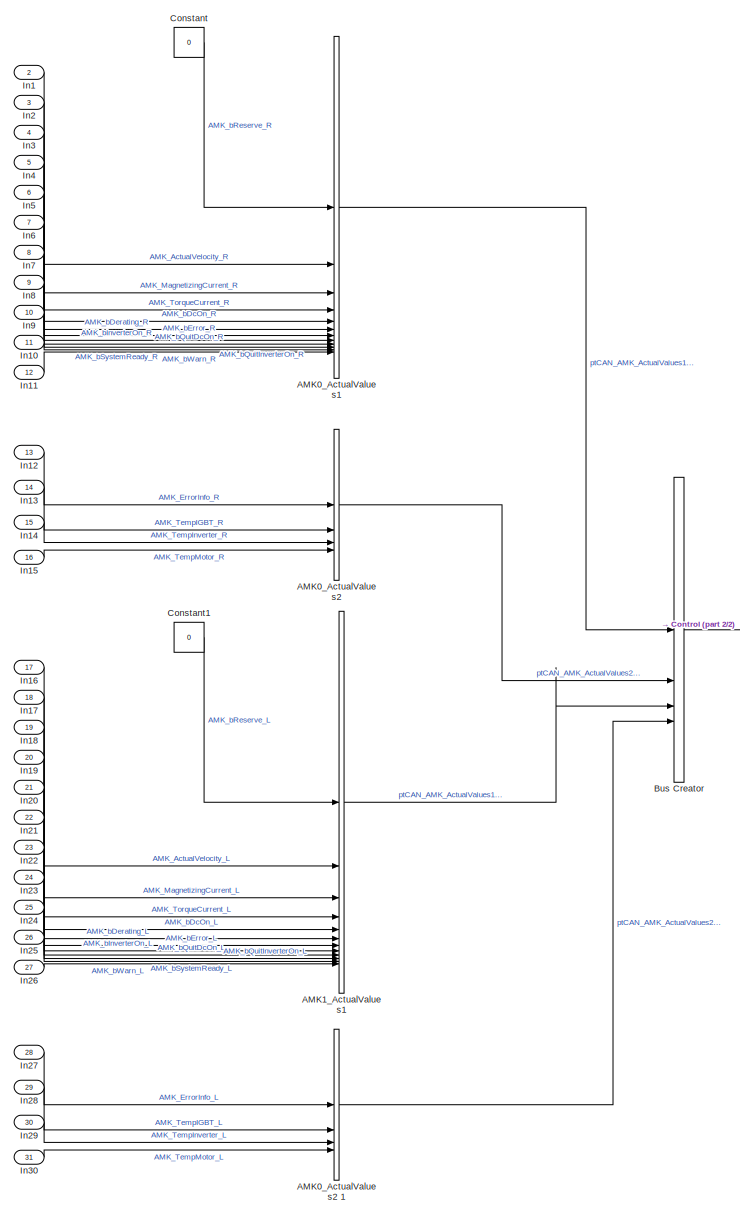
[diagram: root canvas - part 1/2, left side, full height]
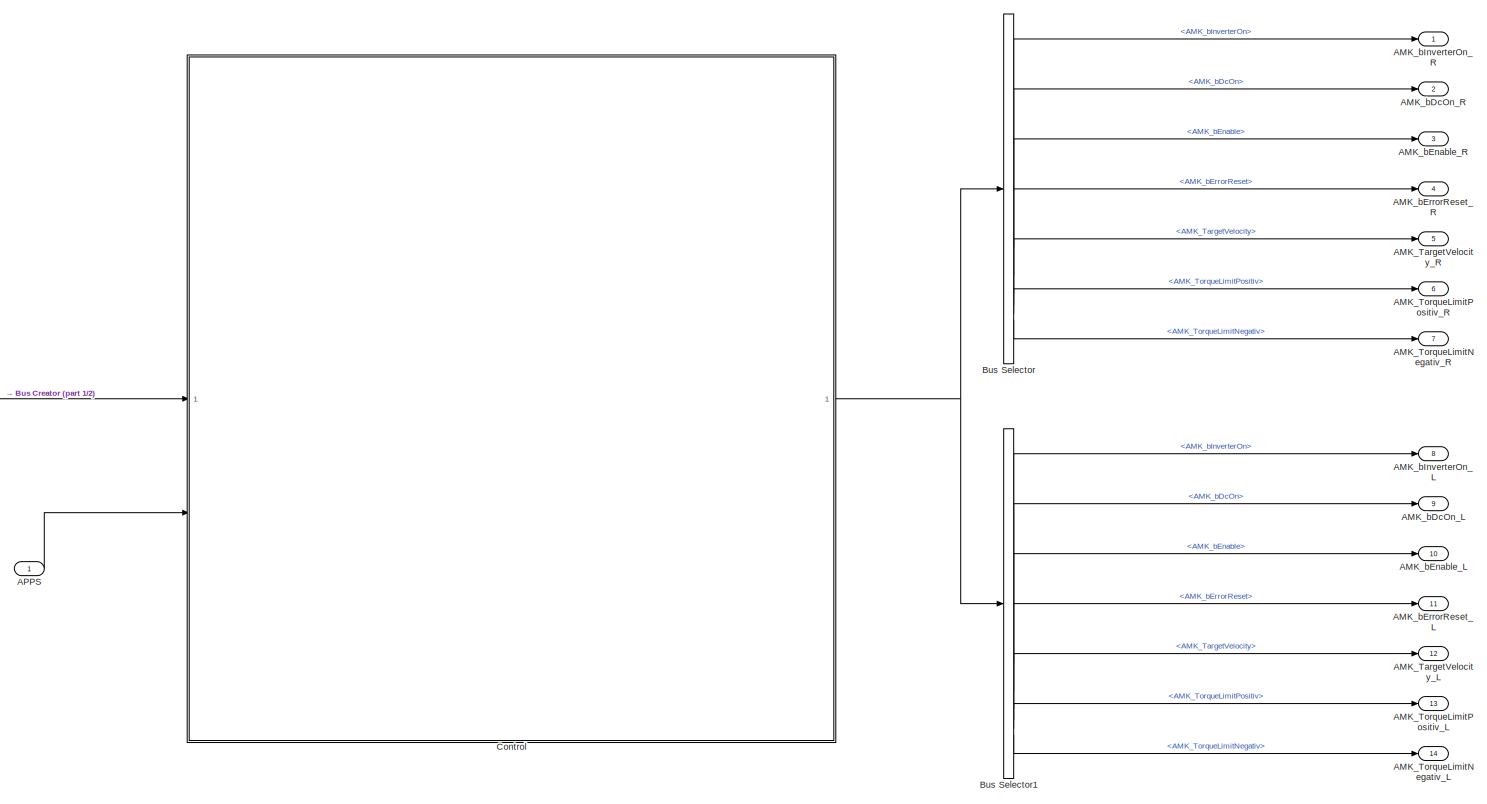
[diagram: root canvas - part 2/2, middle right region]
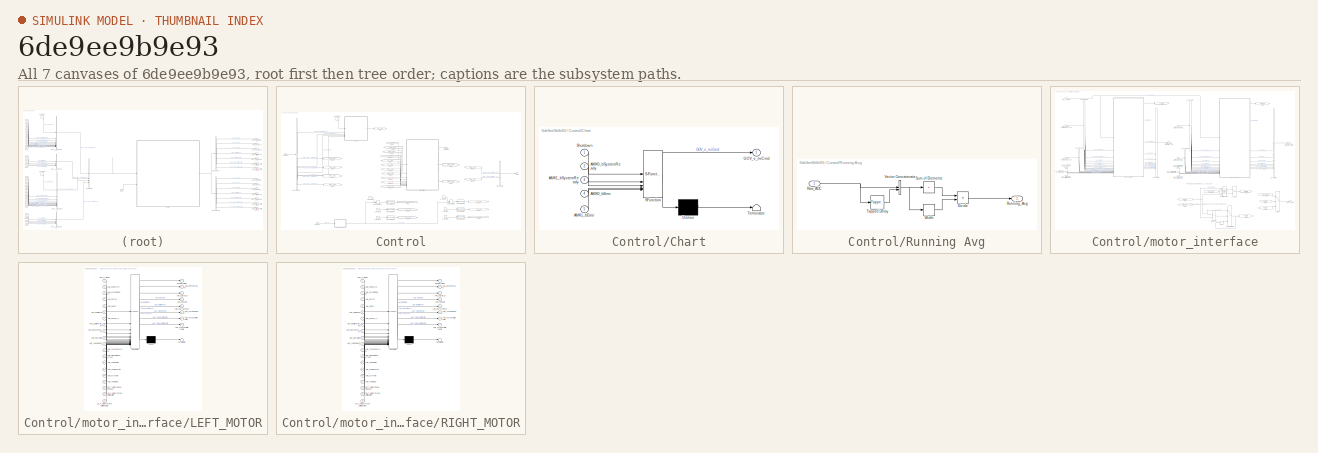
[diagram: thumbnail index - all 7 canvases of the model, root first then tree order]
MODEL slx_6de9ee9b9e93
KIND model
CONFIG AbsTol = auto
CONFIG EnableMultiTasking = on
CONFIG FixedStep = 0.005
CONFIG MaxStep = auto
CONFIG MinStep = auto
CONFIG RelTol = 1e-3
CONFIG SampleTimeConstraint = Unconstrained
CONFIG SolverName = FixedStepAuto
CONFIG StartTime = 0.0
CONFIG StopTime = inf
BLOCK [BusCreator] AMK0_ActualValues1 
  DisplayOption = bar
  InheritFromInputs = on
  Inputs = 12
BLOCK [BusCreator] AMK0_ActualValues2 
  DisplayOption = bar
  InheritFromInputs = on
  Inputs = 4
BLOCK [BusCreator] AMK0_ActualValues2 1
  DisplayOption = bar
  InheritFromInputs = on
  Inputs = 4
BLOCK [BusCreator] AMK1_ActualValues1
  DisplayOption = bar
  InheritFromInputs = on
  Inputs = 12
BLOCK [Outport] AMK_TargetVelocity_L
  Port = 12
BLOCK [Outport] AMK_TargetVelocity_R
  Port = 5
BLOCK [Outport] AMK_TorqueLimitNegativ_L
  Port = 14
BLOCK [Outport] AMK_TorqueLimitNegativ_R
  Port = 7
BLOCK [Outport] AMK_TorqueLimitPositiv_L
  Port = 13
BLOCK [Outport] AMK_TorqueLimitPositiv_R
  Port = 6
BLOCK [Outport] AMK_bDcOn_L
  Port = 9
BLOCK [Outport] AMK_bDcOn_R
  Port = 2
BLOCK [Outport] AMK_bEnable_L
  Port = 10
BLOCK [Outport] AMK_bEnable_R
  Port = 3
BLOCK [Outport] AMK_bErrorReset_L
  Port = 11
BLOCK [Outport] AMK_bErrorReset_R
  Port = 4
BLOCK [Outport] AMK_bInverterOn_L
  Port = 8
BLOCK [Outport] AMK_bInverterOn_R
BLOCK [Inport] APPS
BLOCK [BusCreator] Bus Creator
  DisplayOption = bar
  InheritFromInputs = on
  Inputs = 4
BLOCK [BusSelector] Bus Selector
  OutputSignals = ptCAN_AMK_Setpoints1_Right.AMK_bInverterOn,ptCAN_AMK_Setpoints1_Right.AMK_bDcOn,ptCAN_AMK_Setpoints1_Right.AMK_bEnable,ptCAN_AMK_Setpoints1_Right.AMK_bErrorReset,ptCAN_AMK_Setpoints1_Right.AMK_TargetVelocity,ptCAN_AMK_Setpoints1_Right.AMK_TorqueLimitPositiv,ptCAN_AMK_Setpoints1_Right.AMK_TorqueLimitNegativ
BLOCK [BusSelector] Bus Selector1
  OutputSignals = ptCAN_AMK_Setpoints1_Left.AMK_bInverterOn,ptCAN_AMK_Setpoints1_Left.AMK_bDcOn,ptCAN_AMK_Setpoints1_Left.AMK_bEnable,ptCAN_AMK_Setpoints1_Left.AMK_bErrorReset,ptCAN_AMK_Setpoints1_Left.AMK_TargetVelocity,ptCAN_AMK_Setpoints1_Left.AMK_TorqueLimitPositiv,ptCAN_AMK_Setpoints1_Left.AMK_TorqueLimitNegativ
BLOCK [Constant] Constant
  Value = 0
BLOCK [Constant] Constant1
  Value = 0
BLOCK [SubSystem] Control
BLOCK [Inport] Control/ADC Input
  Port = 2
BLOCK [BusCreator] Control/Bus Creator
  DisplayOption = bar
  InheritFromInputs = on
  Inputs = 2
BLOCK [BusSelector] Control/Bus Selector
  OutputSignals = ptCAN_AMK_ActualValues1_Right.AMK_bSystemReady_R,ptCAN_AMK_ActualValues1_Left.AMK_bSystemReady_L,ptCAN_AMK_ActualValues1_Right.AMK_bError_R,ptCAN_AMK_ActualValues1_Left.AMK_bError_L,ptCAN_AMK_ActualValues1_Right,ptCAN_AMK_ActualValues2_Right,ptCAN_AMK_ActualValues1_Left,ptCAN_AMK_ActualValues2_Left
BLOCK [Inport] Control/CAN Input
BLOCK [DataTypeConversion] Control/Cast To Single
  OutDataTypeStr = single
  RndMeth = Floor
  SaturateOnIntegerOverflow = off
BLOCK [DataTypeConversion] Control/Cast To Single1
  OutDataTypeStr = single
  RndMeth = Floor
  SaturateOnIntegerOverflow = off
BLOCK [DataTypeConversion] Control/Cast To Single2
  OutDataTypeStr = single
  RndMeth = Floor
  SaturateOnIntegerOverflow = off
BLOCK [DataTypeConversion] Control/Cast To Single3
  OutDataTypeStr = single
  RndMeth = Floor
  SaturateOnIntegerOverflow = off
BLOCK [DataTypeConversion] Control/Cast To Single4
  OutDataTypeStr = single
  RndMeth = Floor
  SaturateOnIntegerOverflow = off
BLOCK [DataTypeConversion] Control/Cast To Single5
  OutDataTypeStr = single
  RndMeth = Floor
  SaturateOnIntegerOverflow = off
BLOCK [SubSystem] Control/Chart
  ErrorFcn = Stateflow.Translate.translate
  PermitHierarchicalResolution = ExplicitOnly
  SFBlockType = Chart
  TreatAsAtomicUnit = on
BLOCK [Demux] Control/Chart/ Demux 
  Outputs = 1
BLOCK [S-Function] Control/Chart/ SFunction 
  EnableBusSupport = on
  FunctionName = sf_sfun
  PortCounts = [5 2]
  SFcnIsStateOwnerBlock = off
  SFunctionDeploymentMode = off
  Tag = Stateflow S-Function 1
BLOCK [Terminator] Control/Chart/ Terminator 
BLOCK [Inport] Control/Chart/AMK0_bError
  Port = 4
BLOCK [Inport] Control/Chart/AMK0_bSystemReady
  Port = 2
BLOCK [Inport] Control/Chart/AMK1_bError
  Port = 5
BLOCK [Inport] Control/Chart/AMK1_bSystemReady
  Port = 3
BLOCK [Outport] Control/Chart/GOV_e_miCmd
BLOCK [Inport] Control/Chart/Shutdown
BLOCK [Constant] Control/Constant
  Value = 0
BLOCK [Constant] Control/Constant1
  Value = 50
BLOCK [Constant] Control/Constant11
  Value = 0
BLOCK [Constant] Control/Constant2
  Value = 0
BLOCK [Constant] Control/Constant5
  Value = 0
BLOCK [Constant] Control/Constant6
  Value = 50
BLOCK [Constant] Control/Constant7
  Value = 0
BLOCK [From] Control/From10
  GotoTag = ptCAN_AMK_ActualValues2_Right
BLOCK [From] Control/From16
  GotoTag = VD_n_RightMotorSpeedRequest
BLOCK [From] Control/From17
  GotoTag = VD_T_RightMotorTorqueLimitPositive
BLOCK [From] Control/From2
  GotoTag = GOV_e_miCmd
BLOCK [From] Control/From21
  GotoTag = VD_T_RightMotorTorqueLimitNegative
BLOCK [From] Control/From22
  GotoTag = ptCAN_AMK_ActualValues2_Left
BLOCK [From] Control/From23
  GotoTag = ptCAN_AMK_ActualValues1_Left
BLOCK [From] Control/From24
  GotoTag = VD_n_LeftMotorSpeedRequest
BLOCK [From] Control/From25
  GotoTag = VD_T_LeftMotorTorqueLimitPositive
BLOCK [From] Control/From26
  GotoTag = VD_T_LeftMotorTorqueLimitNegative
BLOCK [From] Control/From27
  GotoTag = ptCAN_AMK_Setpoints1_Left
BLOCK [From] Control/From28
  GotoTag = ptCAN_AMK_Setpoints1_Right
BLOCK [From] Control/From9
  GotoTag = ptCAN_AMK_ActualValues1_Right
BLOCK [Goto] Control/Goto1
  GotoTag = GOV_e_miCmd
BLOCK [Goto] Control/Goto19
  GotoTag = VD_n_RightMotorSpeedRequest
BLOCK [Goto] Control/Goto2
  GotoTag = VD_n_LeftMotorSpeedRequest
BLOCK [Goto] Control/Goto21
  GotoTag = VD_T_RightMotorTorqueLimitPositive
BLOCK [Goto] Control/Goto22
  GotoTag = VD_T_RightMotorTorqueLimitNegative
BLOCK [Goto] Control/Goto25
  GotoTag = ptCAN_AMK_Setpoints1_Left
BLOCK [Goto] Control/Goto28
  GotoTag = ptCAN_AMK_ActualValues2_Right
BLOCK [Goto] Control/Goto29
  GotoTag = ptCAN_AMK_ActualValues1_Right
BLOCK [Goto] Control/Goto3
  GotoTag = VD_T_LeftMotorTorqueLimitPositive
BLOCK [Goto] Control/Goto30
  GotoTag = ptCAN_AMK_ActualValues1_Left
BLOCK [Goto] Control/Goto31
  GotoTag = ptCAN_AMK_ActualValues2_Left
BLOCK [Goto] Control/Goto4
  GotoTag = VD_T_LeftMotorTorqueLimitNegative
BLOCK [Goto] Control/Goto8
  GotoTag = ptCAN_AMK_Setpoints1_Right
BLOCK [ManualSwitch] Control/Manual Switch
  CurrentSetting = 0
BLOCK [ManualSwitch] Control/Manual Switch1
  CurrentSetting = 0
BLOCK [Outport] Control/Out1
BLOCK [SubSystem] Control/Running Avg
BLOCK [Product] Control/Running Avg/Divide
  Inputs = */
BLOCK [Inport] Control/Running Avg/Raw_ADC
BLOCK [Outport] Control/Running Avg/Running_Avg
BLOCK [Sum] Control/Running Avg/Sum of Elements
  IconShape = rectangular
  Inputs = +
BLOCK [Reference] Control/Running Avg/Tapped Delay  REF=simulink/Discrete/Tapped Delay
  SourceBlock = simulink/Discrete/Tapped Delay
  SourceType = Tapped Delay Line
BLOCK [Concatenate] Control/Running Avg/Vector Concatenate
BLOCK [Width] Control/Running Avg/Width
BLOCK [Terminator] Control/Terminator
BLOCK [SubSystem] Control/motor_interface
  AncestorBlock = motor_interface_lib/motor_interface
  LibrarySourceBlock = motor_interface_lib/motor_interface
BLOCK [BusCreator] Control/motor_interface/Bus Creator
  DisplayOption = bar
  InheritFromInputs = on
  Inputs = 7
BLOCK [BusCreator] Control/motor_interface/Bus Creator1
  DisplayOption = bar
  InheritFromInputs = on
  Inputs = 7
BLOCK [BusSelector] Control/motor_interface/Bus Selector
  OutputSignals = AMK_bReserve_R,AMK_bSystemReady_R,AMK_bError_R,AMK_bWarn_R,AMK_bQuitDcOn_R,AMK_bDcOn_R,AMK_bQuitInverterOn_R,AMK_bInverterOn_R,AMK_bDerating_R,AMK_ActualVelocity_R,AMK_TorqueCurrent_R,AMK_MagnetizingCurrent_R
BLOCK [BusSelector] Control/motor_interface/Bus Selector1
  OutputSignals = AMK_TempMotor_R,AMK_TempInverter_R,AMK_ErrorInfo_R,AMK_TempIGBT_R
BLOCK [BusSelector] Control/motor_interface/Bus Selector2
  OutputSignals = AMK_bReserve_L,AMK_bSystemReady_L,AMK_bError_L,AMK_bWarn_L,AMK_bQuitDcOn_L,AMK_bDcOn_L,AMK_bQuitInverterOn_L,AMK_bInverterOn_L,AMK_bDerating_L,AMK_ActualVelocity_L,AMK_TorqueCurrent_L,AMK_MagnetizingCurrent_L
BLOCK [BusSelector] Control/motor_interface/Bus Selector3
  OutputSignals = AMK_TempMotor_L,AMK_TempInverter_L,AMK_ErrorInfo_L,AMK_TempIGBT_L
BLOCK [Constant] Control/motor_interface/Constant
  OutDataTypeStr = Enum: MI_STATUSES
  Value = MI_STATUSES.MI_STS_ERROR
BLOCK [Constant] Control/motor_interface/Constant1
  OutDataTypeStr = Enum: MI_STATUSES
  Value = MI_STATUSES.MI_STS_ERROR
BLOCK [Delay] Control/motor_interface/Delay
  DelayLength = 1
  InitialCondition = MI_STATUSES.OFF
  InputPortMap = u0
BLOCK [From] Control/motor_interface/From
  GotoTag = Left_motorStatus
BLOCK [From] Control/motor_interface/From1
  GotoTag = Right_motorStatus
BLOCK [From] Control/motor_interface/From2
  GotoTag = overallMotorState
BLOCK [From] Control/motor_interface/From4
  GotoTag = motorErrorActive
BLOCK [Inport] Control/motor_interface/GOV_e_miCmd
BLOCK [Outport] Control/motor_interface/GOV_e_miSts
BLOCK [Goto] Control/motor_interface/Goto
  GotoTag = Left_motorStatus
BLOCK [Goto] Control/motor_interface/Goto1
  GotoTag = Right_motorStatus
BLOCK [Goto] Control/motor_interface/Goto2
  GotoTag = motorErrorActive
BLOCK [Goto] Control/motor_interface/Goto3
  GotoTag = overallMotorState
BLOCK [RelationalOperator] Control/motor_interface/GreaterThan
  InputSameDT = off
  Operator = ==
  OutDataTypeStr = boolean
  RndMeth = Simplest
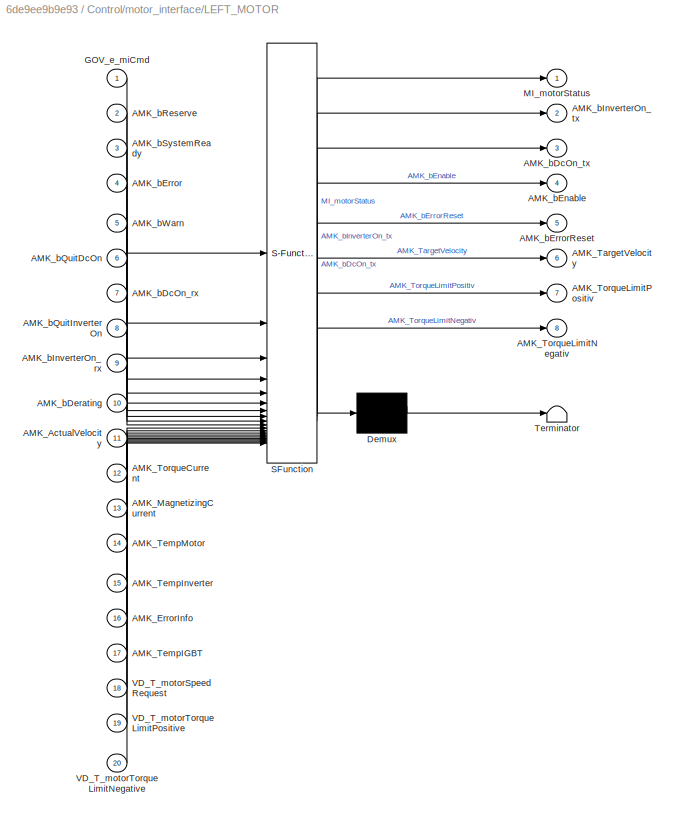
BLOCK [SubSystem] Control/motor_interface/LEFT_MOTOR
  ErrorFcn = Stateflow.Translate.translate
  PermitHierarchicalResolution = ExplicitOnly
  SFBlockType = Chart
  TreatAsAtomicUnit = on
BLOCK [Demux] Control/motor_interface/LEFT_MOTOR/ Demux 
  Outputs = 1
BLOCK [S-Function] Control/motor_interface/LEFT_MOTOR/ SFunction 
  EnableBusSupport = on
  FunctionName = sf_sfun
  PortCounts = [20 9]
  SFcnIsStateOwnerBlock = off
  SFunctionDeploymentMode = off
  Tag = Stateflow S-Function 2
BLOCK [Terminator] Control/motor_interface/LEFT_MOTOR/ Terminator 
BLOCK [Inport] Control/motor_interface/LEFT_MOTOR/AMK_ActualVelocity
  Port = 11
BLOCK [Inport] Control/motor_interface/LEFT_MOTOR/AMK_ErrorInfo
  Port = 16
BLOCK [Inport] Control/motor_interface/LEFT_MOTOR/AMK_MagnetizingCurrent
  Port = 13
BLOCK [Outport] Control/motor_interface/LEFT_MOTOR/AMK_TargetVelocity
  Port = 6
BLOCK [Inport] Control/motor_interface/LEFT_MOTOR/AMK_TempIGBT
  Port = 17
BLOCK [Inport] Control/motor_interface/LEFT_MOTOR/AMK_TempInverter
  Port = 15
BLOCK [Inport] Control/motor_interface/LEFT_MOTOR/AMK_TempMotor
  Port = 14
BLOCK [Inport] Control/motor_interface/LEFT_MOTOR/AMK_TorqueCurrent
  Port = 12
BLOCK [Outport] Control/motor_interface/LEFT_MOTOR/AMK_TorqueLimitNegativ
  Port = 8
BLOCK [Outport] Control/motor_interface/LEFT_MOTOR/AMK_TorqueLimitPositiv
  Port = 7
BLOCK [Inport] Control/motor_interface/LEFT_MOTOR/AMK_bDcOn_rx
  Port = 7
BLOCK [Outport] Control/motor_interface/LEFT_MOTOR/AMK_bDcOn_tx
  Port = 3
BLOCK [Inport] Control/motor_interface/LEFT_MOTOR/AMK_bDerating
  Port = 10
BLOCK [Outport] Control/motor_interface/LEFT_MOTOR/AMK_bEnable
  Port = 4
BLOCK [Inport] Control/motor_interface/LEFT_MOTOR/AMK_bError
  Port = 4
BLOCK [Outport] Control/motor_interface/LEFT_MOTOR/AMK_bErrorReset
  Port = 5
BLOCK [Inport] Control/motor_interface/LEFT_MOTOR/AMK_bInverterOn_rx
  Port = 9
BLOCK [Outport] Control/motor_interface/LEFT_MOTOR/AMK_bInverterOn_tx
  Port = 2
BLOCK [Inport] Control/motor_interface/LEFT_MOTOR/AMK_bQuitDcOn
  Port = 6
BLOCK [Inport] Control/motor_interface/LEFT_MOTOR/AMK_bQuitInverterOn
  Port = 8
BLOCK [Inport] Control/motor_interface/LEFT_MOTOR/AMK_bReserve
  Port = 2
BLOCK [Inport] Control/motor_interface/LEFT_MOTOR/AMK_bSystemReady
  Port = 3
BLOCK [Inport] Control/motor_interface/LEFT_MOTOR/AMK_bWarn
  Port = 5
BLOCK [Inport] Control/motor_interface/LEFT_MOTOR/GOV_e_miCmd
BLOCK [Outport] Control/motor_interface/LEFT_MOTOR/MI_motorStatus
BLOCK [Inport] Control/motor_interface/LEFT_MOTOR/VD_T_motorSpeedRequest
  Port = 18
BLOCK [Inport] Control/motor_interface/LEFT_MOTOR/VD_T_motorTorqueLimitNegative
  Port = 20
BLOCK [Inport] Control/motor_interface/LEFT_MOTOR/VD_T_motorTorqueLimitPositive
  Port = 19
BLOCK [Logic] Control/motor_interface/OR
  AllPortsSameDT = off
  IconShape = distinctive
  Operator = OR
  OutDataTypeStr = boolean
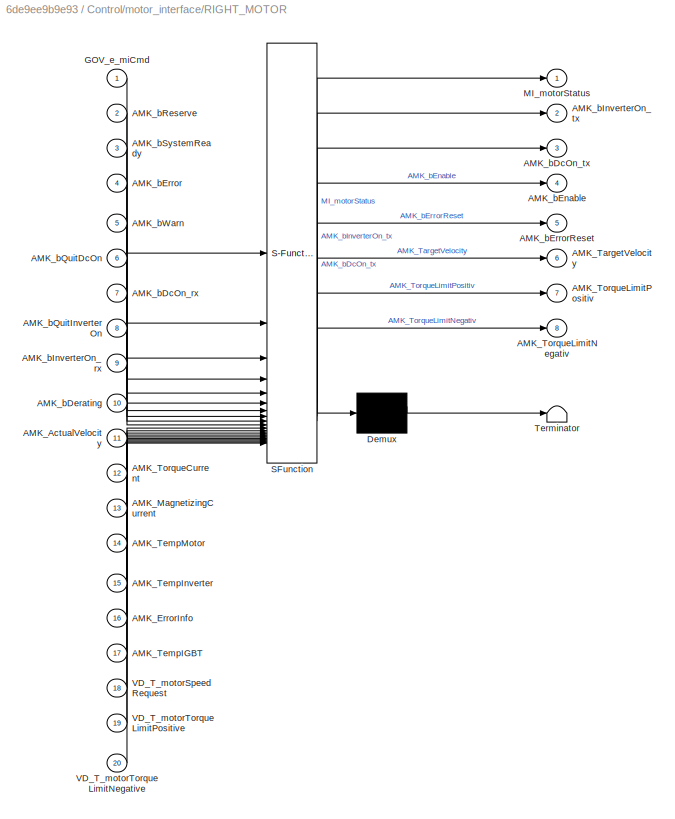
BLOCK [SubSystem] Control/motor_interface/RIGHT_MOTOR
  ErrorFcn = Stateflow.Translate.translate
  PermitHierarchicalResolution = ExplicitOnly
  SFBlockType = Chart
  TreatAsAtomicUnit = on
BLOCK [Demux] Control/motor_interface/RIGHT_MOTOR/ Demux 
  Outputs = 1
BLOCK [S-Function] Control/motor_interface/RIGHT_MOTOR/ SFunction 
  EnableBusSupport = on
  FunctionName = sf_sfun
  PortCounts = [20 9]
  SFcnIsStateOwnerBlock = off
  SFunctionDeploymentMode = off
  Tag = Stateflow S-Function 3
BLOCK [Terminator] Control/motor_interface/RIGHT_MOTOR/ Terminator 
BLOCK [Inport] Control/motor_interface/RIGHT_MOTOR/AMK_ActualVelocity
  Port = 11
BLOCK [Inport] Control/motor_interface/RIGHT_MOTOR/AMK_ErrorInfo
  Port = 16
BLOCK [Inport] Control/motor_interface/RIGHT_MOTOR/AMK_MagnetizingCurrent
  Port = 13
BLOCK [Outport] Control/motor_interface/RIGHT_MOTOR/AMK_TargetVelocity
  Port = 6
BLOCK [Inport] Control/motor_interface/RIGHT_MOTOR/AMK_TempIGBT
  Port = 17
BLOCK [Inport] Control/motor_interface/RIGHT_MOTOR/AMK_TempInverter
  Port = 15
BLOCK [Inport] Control/motor_interface/RIGHT_MOTOR/AMK_TempMotor
  Port = 14
BLOCK [Inport] Control/motor_interface/RIGHT_MOTOR/AMK_TorqueCurrent
  Port = 12
BLOCK [Outport] Control/motor_interface/RIGHT_MOTOR/AMK_TorqueLimitNegativ
  Port = 8
BLOCK [Outport] Control/motor_interface/RIGHT_MOTOR/AMK_TorqueLimitPositiv
  Port = 7
BLOCK [Inport] Control/motor_interface/RIGHT_MOTOR/AMK_bDcOn_rx
  Port = 7
BLOCK [Outport] Control/motor_interface/RIGHT_MOTOR/AMK_bDcOn_tx
  Port = 3
BLOCK [Inport] Control/motor_interface/RIGHT_MOTOR/AMK_bDerating
  Port = 10
BLOCK [Outport] Control/motor_interface/RIGHT_MOTOR/AMK_bEnable
  Port = 4
BLOCK [Inport] Control/motor_interface/RIGHT_MOTOR/AMK_bError
  Port = 4
BLOCK [Outport] Control/motor_interface/RIGHT_MOTOR/AMK_bErrorReset
  Port = 5
BLOCK [Inport] Control/motor_interface/RIGHT_MOTOR/AMK_bInverterOn_rx
  Port = 9
BLOCK [Outport] Control/motor_interface/RIGHT_MOTOR/AMK_bInverterOn_tx
  Port = 2
BLOCK [Inport] Control/motor_interface/RIGHT_MOTOR/AMK_bQuitDcOn
  Port = 6
BLOCK [Inport] Control/motor_interface/RIGHT_MOTOR/AMK_bQuitInverterOn
  Port = 8
BLOCK [Inport] Control/motor_interface/RIGHT_MOTOR/AMK_bReserve
  Port = 2
BLOCK [Inport] Control/motor_interface/RIGHT_MOTOR/AMK_bSystemReady
  Port = 3
BLOCK [Inport] Control/motor_interface/RIGHT_MOTOR/AMK_bWarn
  Port = 5
BLOCK [Inport] Control/motor_interface/RIGHT_MOTOR/GOV_e_miCmd
BLOCK [Outport] Control/motor_interface/RIGHT_MOTOR/MI_motorStatus
BLOCK [Inport] Control/motor_interface/RIGHT_MOTOR/VD_T_motorSpeedRequest
  Port = 18
BLOCK [Inport] Control/motor_interface/RIGHT_MOTOR/VD_T_motorTorqueLimitNegative
  Port = 20
BLOCK [Inport] Control/motor_interface/RIGHT_MOTOR/VD_T_motorTorqueLimitPositive
  Port = 19
BLOCK [Switch] Control/motor_interface/Switch
  Criteria = u2 > Threshold
  InputSameDT = off
  SaturateOnIntegerOverflow = off
BLOCK [Inport] Control/motor_interface/VD_T_LeftMotorTorqueLimitNegative
  Port = 11
BLOCK [Inport] Control/motor_interface/VD_T_LeftMotorTorqueLimitPositive
  Port = 10
BLOCK [Inport] Control/motor_interface/VD_T_RightMotorTorqueLimitNegative
  Port = 6
BLOCK [Inport] Control/motor_interface/VD_T_RightMotorTorqueLimitPositive
  Port = 5
BLOCK [Inport] Control/motor_interface/VD_n_LeftMotorSpeedRequest
  Port = 9
BLOCK [Inport] Control/motor_interface/VD_n_RightMotorSpeedRequest
  Port = 4
BLOCK [RelationalOperator] Control/motor_interface/motorErrorActive
  InputSameDT = off
  Operator = ==
  OutDataTypeStr = boolean
  RndMeth = Simplest
BLOCK [RelationalOperator] Control/motor_interface/motorErrorActive1
  InputSameDT = off
  Operator = ==
  OutDataTypeStr = boolean
  RndMeth = Simplest
BLOCK [Switch] Control/motor_interface/overallMotorState
  Criteria = u2 > Threshold
  InputSameDT = off
  SaturateOnIntegerOverflow = off
BLOCK [Inport] Control/motor_interface/ptCAN_AMK_ActualValues1_Left
  Port = 7
BLOCK [Inport] Control/motor_interface/ptCAN_AMK_ActualValues1_Right
  Port = 2
BLOCK [Inport] Control/motor_interface/ptCAN_AMK_ActualValues2_Left
  Port = 8
BLOCK [Inport] Control/motor_interface/ptCAN_AMK_ActualValues2_Right
  Port = 3
BLOCK [Outport] Control/motor_interface/ptCAN_AMK_Setpoints1_Left
  Port = 3
BLOCK [Outport] Control/motor_interface/ptCAN_AMK_Setpoints1_Right
  Port = 2
BLOCK [Inport] In1
  Port = 2
BLOCK [Inport] In10
  Port = 11
BLOCK [Inport] In11
  Port = 12
BLOCK [Inport] In12
  Port = 13
BLOCK [Inport] In13
  Port = 14
BLOCK [Inport] In14
  Port = 15
BLOCK [Inport] In15
  Port = 16
BLOCK [Inport] In16
  Port = 17
BLOCK [Inport] In17
  Port = 18
BLOCK [Inport] In18
  Port = 19
BLOCK [Inport] In19
  Port = 20
BLOCK [Inport] In2
  Port = 3
BLOCK [Inport] In20
  Port = 21
BLOCK [Inport] In21
  Port = 22
BLOCK [Inport] In22
  Port = 23
BLOCK [Inport] In23
  Port = 24
BLOCK [Inport] In24
  Port = 25
BLOCK [Inport] In25
  Port = 26
BLOCK [Inport] In26
  Port = 27
BLOCK [Inport] In27
  Port = 28
BLOCK [Inport] In28
  Port = 29
BLOCK [Inport] In29
  Port = 30
BLOCK [Inport] In3
  Port = 4
BLOCK [Inport] In30
  Port = 31
BLOCK [Inport] In4
  Port = 5
BLOCK [Inport] In5
  Port = 6
BLOCK [Inport] In6
  Port = 7
BLOCK [Inport] In7
  Port = 8
BLOCK [Inport] In8
  Port = 9
BLOCK [Inport] In9
  Port = 10
ANNOTATION Control/motor_interface: if either motor is in an error state, return GOV_e_miSts as Error
ANNOTATION Control/motor_interface: otherwise, update the overallMotorState only when the Left and Right states match, and return as GOV_e_miSts
LINE AMK0_ActualValues1 :1 -> Bus Creator:1
LINE AMK0_ActualValues2 1:1 -> Bus Creator:4
LINE AMK0_ActualValues2 :1 -> Bus Creator:2
LINE AMK1_ActualValues1:1 -> Bus Creator:3
LINE APPS:1 -> Control:2
LINE Bus Creator:1 -> Control:1
LINE Bus Selector1:1 -> AMK_bInverterOn_L:1
LINE Bus Selector1:2 -> AMK_bDcOn_L:1
LINE Bus Selector1:3 -> AMK_bEnable_L:1
LINE Bus Selector1:4 -> AMK_bErrorReset_L:1
LINE Bus Selector1:5 -> AMK_TargetVelocity_L:1
LINE Bus Selector1:6 -> AMK_TorqueLimitPositiv_L:1
LINE Bus Selector1:7 -> AMK_TorqueLimitNegativ_L:1
LINE Bus Selector:1 -> AMK_bInverterOn_R:1
LINE Bus Selector:2 -> AMK_bDcOn_R:1
LINE Bus Selector:3 -> AMK_bEnable_R:1
LINE Bus Selector:4 -> AMK_bErrorReset_R:1
LINE Bus Selector:5 -> AMK_TargetVelocity_R:1
LINE Bus Selector:6 -> AMK_TorqueLimitPositiv_R:1
LINE Bus Selector:7 -> AMK_TorqueLimitNegativ_R:1
LINE Constant1:1 -> AMK1_ActualValues1:1
LINE Constant:1 -> AMK0_ActualValues1 :1
LINE Control/ADC Input:1 -> Control/Running Avg:1
LINE Control/Bus Creator:1 -> Control/Out1:1
LINE Control/Bus Selector:1 -> Control/Chart:2
LINE Control/Bus Selector:2 -> Control/Chart:3
LINE Control/Bus Selector:3 -> Control/Chart:4
LINE Control/Bus Selector:4 -> Control/Chart:5
LINE Control/Bus Selector:5 -> Control/Goto29:1
LINE Control/Bus Selector:6 -> Control/Goto28:1
LINE Control/Bus Selector:7 -> Control/Goto30:1
LINE Control/Bus Selector:8 -> Control/Goto31:1
LINE Control/CAN Input:1 -> Control/Bus Selector:1
LINE Control/Cast To Single1:1 -> Control/Goto21:1
LINE Control/Cast To Single2:1 -> Control/Goto22:1
LINE Control/Cast To Single3:1 -> Control/Goto2:1
LINE Control/Cast To Single4:1 -> Control/Goto3:1
LINE Control/Cast To Single5:1 -> Control/Goto4:1
LINE Control/Cast To Single:1 -> Control/Goto19:1
LINE Control/Chart:1 -> Control/Goto1:1
LINE Control/Constant11:1 -> Control/Chart:1
LINE Control/Constant1:1 -> Control/Cast To Single1:1
LINE Control/Constant2:1 -> Control/Cast To Single2:1
LINE Control/Constant5:1 -> Control/Manual Switch1:1
LINE Control/Constant6:1 -> Control/Cast To Single4:1
LINE Control/Constant7:1 -> Control/Cast To Single5:1
LINE Control/Constant:1 -> Control/Manual Switch:1
LINE Control/From10:1 -> Control/motor_interface:3
LINE Control/From16:1 -> Control/motor_interface:4
LINE Control/From17:1 -> Control/motor_interface:5
LINE Control/From21:1 -> Control/motor_interface:6
LINE Control/From22:1 -> Control/motor_interface:8
LINE Control/From23:1 -> Control/motor_interface:7
LINE Control/From24:1 -> Control/motor_interface:9
LINE Control/From25:1 -> Control/motor_interface:10
LINE Control/From26:1 -> Control/motor_interface:11
LINE Control/From27:1 -> Control/Bus Creator:2
LINE Control/From28:1 -> Control/Bus Creator:1
LINE Control/From2:1 -> Control/motor_interface:1
LINE Control/From9:1 -> Control/motor_interface:2
LINE Control/Manual Switch1:1 -> Control/Cast To Single3:1
LINE Control/Manual Switch:1 -> Control/Cast To Single:1
LINE Control/Running Avg/Divide:1 -> Control/Running Avg/Running_Avg:1
NET Control/Running Avg/Raw_ADC:1 -> Control/Running Avg/Tapped Delay:1, Control/Running Avg/Vector Concatenate:1
LINE Control/Running Avg/Sum of Elements:1 -> Control/Running Avg/Divide:1
LINE Control/Running Avg/Tapped Delay:1 -> Control/Running Avg/Vector Concatenate:2
NET Control/Running Avg/Vector Concatenate:1 -> Control/Running Avg/Sum of Elements:1, Control/Running Avg/Width:1
LINE Control/Running Avg/Width:1 -> Control/Running Avg/Divide:2
NET Control/Running Avg:1 -> Control/Manual Switch1:2, Control/Manual Switch:2
LINE Control/motor_interface:1 -> Control/Terminator:1
LINE Control/motor_interface:2 -> Control/Goto8:1
LINE Control/motor_interface:3 -> Control/Goto25:1
NET Control:1 -> Bus Selector1:1, Bus Selector:1
LINE In10:1 -> AMK0_ActualValues1 :11
LINE In11:1 -> AMK0_ActualValues1 :12
LINE In12:1 -> AMK0_ActualValues2 :1
LINE In13:1 -> AMK0_ActualValues2 :2
LINE In14:1 -> AMK0_ActualValues2 :3
LINE In15:1 -> AMK0_ActualValues2 :4
LINE In16:1 -> AMK1_ActualValues1:2
LINE In17:1 -> AMK1_ActualValues1:3
LINE In18:1 -> AMK1_ActualValues1:4
LINE In19:1 -> AMK1_ActualValues1:5
LINE In1:1 -> AMK0_ActualValues1 :2
LINE In20:1 -> AMK1_ActualValues1:6
LINE In21:1 -> AMK1_ActualValues1:7
LINE In22:1 -> AMK1_ActualValues1:8
LINE In23:1 -> AMK1_ActualValues1:9
LINE In24:1 -> AMK1_ActualValues1:10
LINE In25:1 -> AMK1_ActualValues1:11
LINE In26:1 -> AMK1_ActualValues1:12
LINE In27:1 -> AMK0_ActualValues2 1:1
LINE In28:1 -> AMK0_ActualValues2 1:2
LINE In29:1 -> AMK0_ActualValues2 1:3
LINE In2:1 -> AMK0_ActualValues1 :3
LINE In30:1 -> AMK0_ActualValues2 1:4
LINE In3:1 -> AMK0_ActualValues1 :4
LINE In4:1 -> AMK0_ActualValues1 :5
LINE In5:1 -> AMK0_ActualValues1 :6
LINE In6:1 -> AMK0_ActualValues1 :7
LINE In7:1 -> AMK0_ActualValues1 :8
LINE In8:1 -> AMK0_ActualValues1 :9
LINE In9:1 -> AMK0_ActualValues1 :10
note: NET lines group one-source signal fan-out (src -> all destinations, sorted); 1:1 wires keep LINE
CHART Control/Chart states=5 transitions=8
  STATE_LABEL 'Init\nen:\nGOV_e_miCmd = MI_CMD.CMD_INIT;'
  STATE_LABEL 'Run\nen:\nGOV_e_miCmd = MI_CMD.CMD_STARTUP;'
  STATE_LABEL 'Error0\nen:\nGOV_e_miCmd = MI_CMD.ERR_RESET;\n'
  STATE_LABEL 'Error1\nen:\nGOV_e_miCmd = MI_CMD.ERR_RESET;\n'
  STATE_LABEL 'Shutdown\nen:\nGOV_e_miCmd = MI_CMD.CMD_SHUTDOWN;'
CHART Control/motor_interface/LEFT_MOTOR states=18 transitions=41
  STATE_LABEL '[AMK_bError==1]'
  STATE_LABEL 'motorOff_waitingForGov\nen:\nMI_motorStatus = MI_STATUSES.OFF;\nAMK_bInverterOn_tx = 0;\nAMK_bDcOn_tx = 0;\nAMK_bEnable = 0;\nAMK_bErrorReset = 0;\nAMK_TargetVelocity = 0;\nAMK_TorqueLimitPositiv = 0;\nAMK_TorqueLimitNegativ = 0;'
  STATE_LABEL 'AMK_startup'
  STATE_LABEL 'waiting_sysReady\nen:\nMI_motorStatus = MI_STATUSES.STARTUP;'
  STATE_LABEL 'toggleDCon\nen:\nAMK_bDcOn_tx = 1;'
  STATE_LABEL 'enforceSetpointsZero\nen:\nAMK_TargetVelocity = 0;\nAMK_TorqueLimitPositiv = 0;\nAMK_TorqueLimitNegativ = 0;'
  STATE_LABEL 'commandOn\nen:\nAMK_bEnable = 1;\nAMK_bInverterOn_tx = 1;\n'
  STATE_LABEL '[GOV_e_miCmd == MI_CMD.CMD_STARTUP]'
  STATE_LABEL '[AMK_bError==1]'
  STATE_LABEL '[AMK_bSystemReady==1]'
  STATE_LABEL '[AMK_bError==1]'
  STATE_LABEL '[(AMK_bDcOn_rx==1) ...\n&& (AMK_bQuitDcOn==1)]'
  STATE_LABEL '[AMK_bError==1]'
  STATE_LABEL '[AMK_bError==1]'
  STATE_LABEL 'after(1,sec)'
  STATE_LABEL '[(AMK_bInverterOn_rx ==1) && ...\n (AMK_bQuitInverterOn==1)]'
  STATE_LABEL 'waiting_sysReady\nen:\nMI_motorStatus = MI_STATUSES.STARTUP;'
  STATE_LABEL 'toggleDCon\nen:\nAMK_bDcOn_tx = 1;'
  STATE_LABEL 'enforceSetpointsZero\nen:\nAMK_TargetVelocity = 0;\nAMK_TorqueLimitPositiv = 0;\nAMK_TorqueLimitNegativ = 0;'
  STATE_LABEL 'commandOn\nen:\nAMK_bEnable = 1;\nAMK_bInverterOn_tx = 1;\n'
  STATE_LABEL 'AMK_errorReset'
  STATE_LABEL 'toggleReset\nen:\nAMK_bErrorReset = 0;'
  STATE_LABEL 'sendReset\nen:\nAMK_bErrorReset = 1;'
  STATE_LABEL 'toggleEnable\nen:\nAMK_bEnable = 0;'
  STATE_LABEL 'enforceSetpointsZero\nen:\nAMK_TargetVelocity = 0;\nAMK_TorqueLimitPositiv = 0;\nAMK_TorqueLimitNegativ = 0;\nAMK_bInverterOn_tx = 0;'
  STATE_LABEL '[AMK_bSystemReady==1]'
  STATE_LABEL 'after(500,msec)'
  STATE_LABEL 'after(500,msec)'
  STATE_LABEL '[AMK_bInverterOn_rx==0]'
  STATE_LABEL '[GOV_e_miCmd == MI_CMD.ERR_RESET]'
  STATE_LABEL 'toggleReset\nen:\nAMK_bErrorReset = 0;'
  STATE_LABEL 'sendReset\nen:\nAMK_bErrorReset = 1;'
  STATE_LABEL 'toggleEnable\nen:\nAMK_bEnable = 0;'
  STATE_LABEL 'enforceSetpointsZero\nen:\nAMK_TargetVelocity = 0;\nAMK_TorqueLimitPositiv = 0;\nAMK_TorqueLimitNegativ = 0;\nAMK_bInverterOn_tx = 0;'
  STATE_LABEL 'AMK_shutdown\n'
  STATE_LABEL 'toggleDCon\nen:\nAMK_bDcOn_tx = 0;'
  STATE_LABEL 'commandOff\nen:\nAMK_bEnable = 0;\n'
  STATE_LABEL 'enforceSetpointsZero\nen:\nMI_motorStatus = MI_STATUSES.SHUTDOWN;\nAMK_TargetVelocity = 0;\nAMK_TorqueLimitPositiv = 0;\nAMK_TorqueLimitNegativ = 0;\nAMK_bInverterOn_tx = 0;\n'
  STATE_LABEL '[(AMK_bDcOn_rx==0) && (AMK_bQuitDcOn==0)]'
  STATE_LABEL '[AMK_bError==1]'
CHART Control/motor_interface/RIGHT_MOTOR states=18 transitions=41
  STATE_LABEL '[AMK_bError==1]'
  STATE_LABEL 'motorOff_waitingForGov\nen:\nMI_motorStatus = MI_STATUSES.OFF;\nAMK_bInverterOn_tx = 0;\nAMK_bDcOn_tx = 0;\nAMK_bEnable = 0;\nAMK_bErrorReset = 0;\nAMK_TargetVelocity = 0;\nAMK_TorqueLimitPositiv = 0;\nAMK_TorqueLimitNegativ = 0;'
  STATE_LABEL 'AMK_startup'
  STATE_LABEL 'waiting_sysReady\nen:\nMI_motorStatus = MI_STATUSES.STARTUP;'
  STATE_LABEL 'toggleDCon\nen:\nAMK_bDcOn_tx = 1;'
  STATE_LABEL 'enforceSetpointsZero\nen:\nAMK_TargetVelocity = 0;\nAMK_TorqueLimitPositiv = 0;\nAMK_TorqueLimitNegativ = 0;'
  STATE_LABEL 'commandOn\nen:\nAMK_bEnable = 1;\nAMK_bInverterOn_tx = 1;\n'
  STATE_LABEL '[GOV_e_miCmd == MI_CMD.CMD_STARTUP]'
  STATE_LABEL '[AMK_bError==1]'
  STATE_LABEL '[AMK_bSystemReady==1]'
  STATE_LABEL '[AMK_bError==1]'
  STATE_LABEL '[(AMK_bDcOn_rx==1) ...\n&& (AMK_bQuitDcOn==1)]'
  STATE_LABEL '[AMK_bError==1]'
  STATE_LABEL '[AMK_bError==1]'
  STATE_LABEL 'after(1,sec)'
  STATE_LABEL '[(AMK_bInverterOn_rx ==1) && ...\n (AMK_bQuitInverterOn==1)]'
  STATE_LABEL 'waiting_sysReady\nen:\nMI_motorStatus = MI_STATUSES.STARTUP;'
  STATE_LABEL 'toggleDCon\nen:\nAMK_bDcOn_tx = 1;'
  STATE_LABEL 'enforceSetpointsZero\nen:\nAMK_TargetVelocity = 0;\nAMK_TorqueLimitPositiv = 0;\nAMK_TorqueLimitNegativ = 0;'
  STATE_LABEL 'commandOn\nen:\nAMK_bEnable = 1;\nAMK_bInverterOn_tx = 1;\n'
  STATE_LABEL 'AMK_errorReset'
  STATE_LABEL 'toggleReset\nen:\nAMK_bErrorReset = 0;'
  STATE_LABEL 'sendReset\nen:\nAMK_bErrorReset = 1;'
  STATE_LABEL 'toggleEnable\nen:\nAMK_bEnable = 0;'
  STATE_LABEL 'enforceSetpointsZero\nen:\nAMK_TargetVelocity = 0;\nAMK_TorqueLimitPositiv = 0;\nAMK_TorqueLimitNegativ = 0;\nAMK_bInverterOn_tx = 0;'
  STATE_LABEL '[AMK_bSystemReady==1]'
  STATE_LABEL 'after(500,msec)'
  STATE_LABEL 'after(500,msec)'
  STATE_LABEL '[AMK_bInverterOn_rx==0]'
  STATE_LABEL '[GOV_e_miCmd == MI_CMD.ERR_RESET]'
  STATE_LABEL 'toggleReset\nen:\nAMK_bErrorReset = 0;'
  STATE_LABEL 'sendReset\nen:\nAMK_bErrorReset = 1;'
  STATE_LABEL 'toggleEnable\nen:\nAMK_bEnable = 0;'
  STATE_LABEL 'enforceSetpointsZero\nen:\nAMK_TargetVelocity = 0;\nAMK_TorqueLimitPositiv = 0;\nAMK_TorqueLimitNegativ = 0;\nAMK_bInverterOn_tx = 0;'
  STATE_LABEL 'AMK_shutdown\n'
  STATE_LABEL 'toggleDCon\nen:\nAMK_bDcOn_tx = 0;'
  STATE_LABEL 'commandOff\nen:\nAMK_bEnable = 0;\n'
  STATE_LABEL 'enforceSetpointsZero\nen:\nMI_motorStatus = MI_STATUSES.SHUTDOWN;\nAMK_TargetVelocity = 0;\nAMK_TorqueLimitPositiv = 0;\nAMK_TorqueLimitNegativ = 0;\nAMK_bInverterOn_tx = 0;\n'
  STATE_LABEL '[(AMK_bDcOn_rx==0) && (AMK_bQuitDcOn==0)]'
  STATE_LABEL '[AMK_bError==1]'
CHART  states=0 transitions=0
CHART  states=0 transitions=0
CHART  states=0 transitions=0
